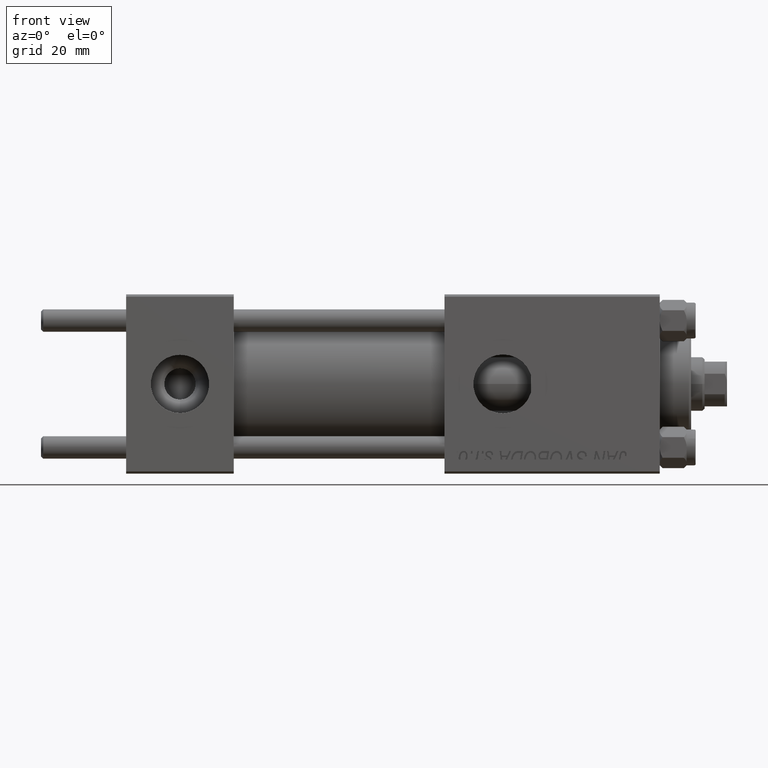
[diagram: clean part render]
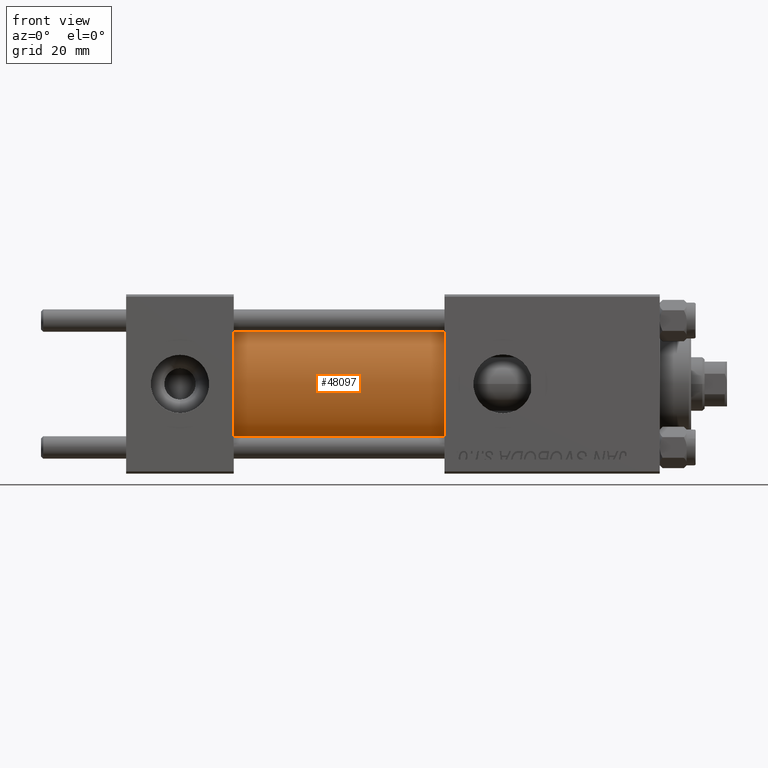
[diagram: same view with one face highlighted and labeled with its STEP entity id]
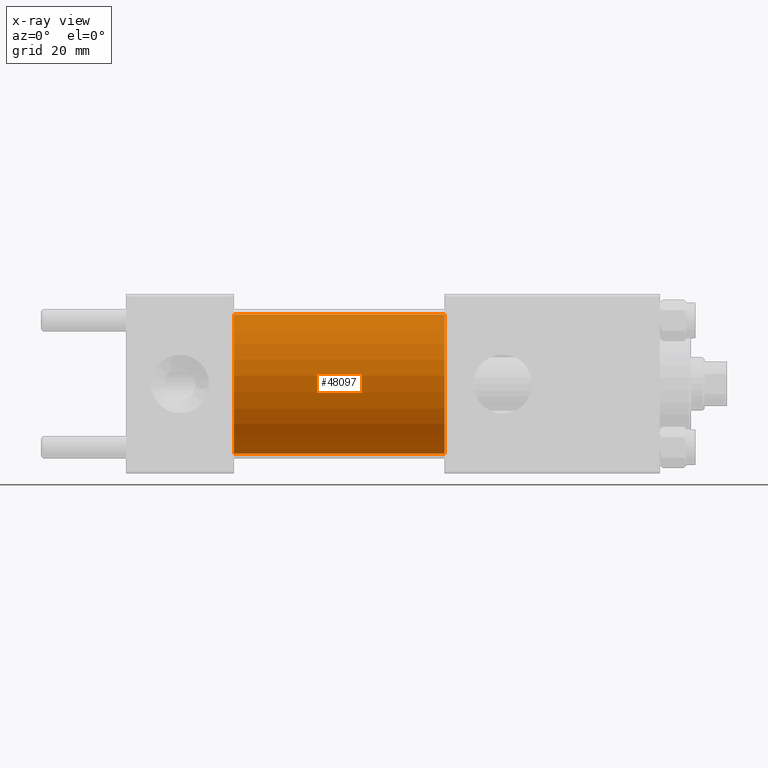
[diagram: x-ray of the same camera — body ghosted, the highlighted face saturated]
A machine part, front view. The second image highlights one B-rep face of the part: STEP entity #48097.
The next image is the same camera in x-ray: the body ghosted, the highlighted face saturated — about 0% of this face is hidden behind the body in this view.
In plain terms, the highlighted cylindrical surface (partial cylindrical patch) has radius 15.5 mm, axis along (-1, -0, -0).
Its self-contained STEP definition (entity closure, byte-faithful):
#104 = VECTOR ( 'NONE', #21683, 1000.000000000000000 ) ;
#1938 = DIRECTION ( 'NONE',  ( -1.000000000000000000, -0.000000000000000000, -0.000000000000000000 ) ) ;
#2018 = FACE_OUTER_BOUND ( 'NONE', #47217, .T. ) ;
#2259 = CYLINDRICAL_SURFACE ( 'NONE', #31561, 15.50000000000000000 ) ;
#2678 = LINE ( 'NONE', #44980, #37074 ) ;
#4817 = ORIENTED_EDGE ( 'NONE', *, *, #16416, .F. ) ;
#4829 = VERTEX_POINT ( 'NONE', #17720 ) ;
#6325 = CARTESIAN_POINT ( 'NONE',  ( 71.00000000000001421, 1.898202538678397557E-15, -15.50000000000000000 ) ) ;
#7526 = CARTESIAN_POINT ( 'NONE',  ( 24.00000000000000000, 0.000000000000000000, 0.000000000000000000 ) ) ;
#8987 = CARTESIAN_POINT ( 'NONE',  ( 24.00000000000000000, 0.000000000000000000, 15.50000000000000000 ) ) ;
#9678 = DIRECTION ( 'NONE',  ( 1.000000000000000000, 0.000000000000000000, 0.000000000000000000 ) ) ;
#10014 = CARTESIAN_POINT ( 'NONE',  ( 71.00000000000001421, 0.000000000000000000, 15.50000000000000000 ) ) ;
#11386 = VERTEX_POINT ( 'NONE', #29429 ) ;
#15587 = DIRECTION ( 'NONE',  ( 0.000000000000000000, 0.000000000000000000, 1.000000000000000000 ) ) ;
#16175 = AXIS2_PLACEMENT_3D ( 'NONE', #44168, #9678, #25039 ) ;
#16255 = CIRCLE ( 'NONE', #32309, 15.50000000000000000 ) ;
#16416 = EDGE_CURVE ( 'NONE', #18444, #4829, #29812, .T. ) ;
#17720 = CARTESIAN_POINT ( 'NONE',  ( 71.00000000000001421, 1.898202538678397557E-15, -15.50000000000000000 ) ) ;
#18105 = EDGE_CURVE ( 'NONE', #18444, #30373, #2678, .T. ) ;
#18444 = VERTEX_POINT ( 'NONE', #10014 ) ;
#18860 = DIRECTION ( 'NONE',  ( 1.000000000000000000, 0.000000000000000000, 0.000000000000000000 ) ) ;
#21683 = DIRECTION ( 'NONE',  ( -1.000000000000000000, -0.000000000000000000, -0.000000000000000000 ) ) ;
#23912 = ORIENTED_EDGE ( 'NONE', *, *, #45801, .F. ) ;
#25039 = DIRECTION ( 'NONE',  ( 0.000000000000000000, 0.000000000000000000, -1.000000000000000000 ) ) ;
#29429 = CARTESIAN_POINT ( 'NONE',  ( 24.00000000000000000, 1.898202538678397557E-15, -15.50000000000000000 ) ) ;
#29677 = ORIENTED_EDGE ( 'NONE', *, *, #18105, .T. ) ;
#29812 = CIRCLE ( 'NONE', #16175, 15.50000000000000000 ) ;
#30373 = VERTEX_POINT ( 'NONE', #8987 ) ;
#31561 = AXIS2_PLACEMENT_3D ( 'NONE', #32486, #32977, #32725 ) ;
#32309 = AXIS2_PLACEMENT_3D ( 'NONE', #7526, #18860, #15587 ) ;
#32486 = CARTESIAN_POINT ( 'NONE',  ( 71.00000000000001421, 0.000000000000000000, 0.000000000000000000 ) ) ;
#32725 = DIRECTION ( 'NONE',  ( 0.000000000000000000, 0.000000000000000000, 1.000000000000000000 ) ) ;
#32977 = DIRECTION ( 'NONE',  ( -1.000000000000000000, -0.000000000000000000, -0.000000000000000000 ) ) ;
#33502 = LINE ( 'NONE', #6325, #104 ) ;
#37074 = VECTOR ( 'NONE', #1938, 1000.000000000000000 ) ;
#44168 = CARTESIAN_POINT ( 'NONE',  ( 71.00000000000001421, 0.000000000000000000, 0.000000000000000000 ) ) ;
#44211 = ORIENTED_EDGE ( 'NONE', *, *, #46569, .T. ) ;
#44980 = CARTESIAN_POINT ( 'NONE',  ( 71.00000000000001421, 0.000000000000000000, 15.50000000000000000 ) ) ;
#45801 = EDGE_CURVE ( 'NONE', #4829, #11386, #33502, .T. ) ;
#46569 = EDGE_CURVE ( 'NONE', #30373, #11386, #16255, .T. ) ;
#47217 = EDGE_LOOP ( 'NONE', ( #23912, #4817, #29677, #44211 ) ) ;
#48097 = ADVANCED_FACE ( 'NONE', ( #2018 ), #2259, .T. ) ;